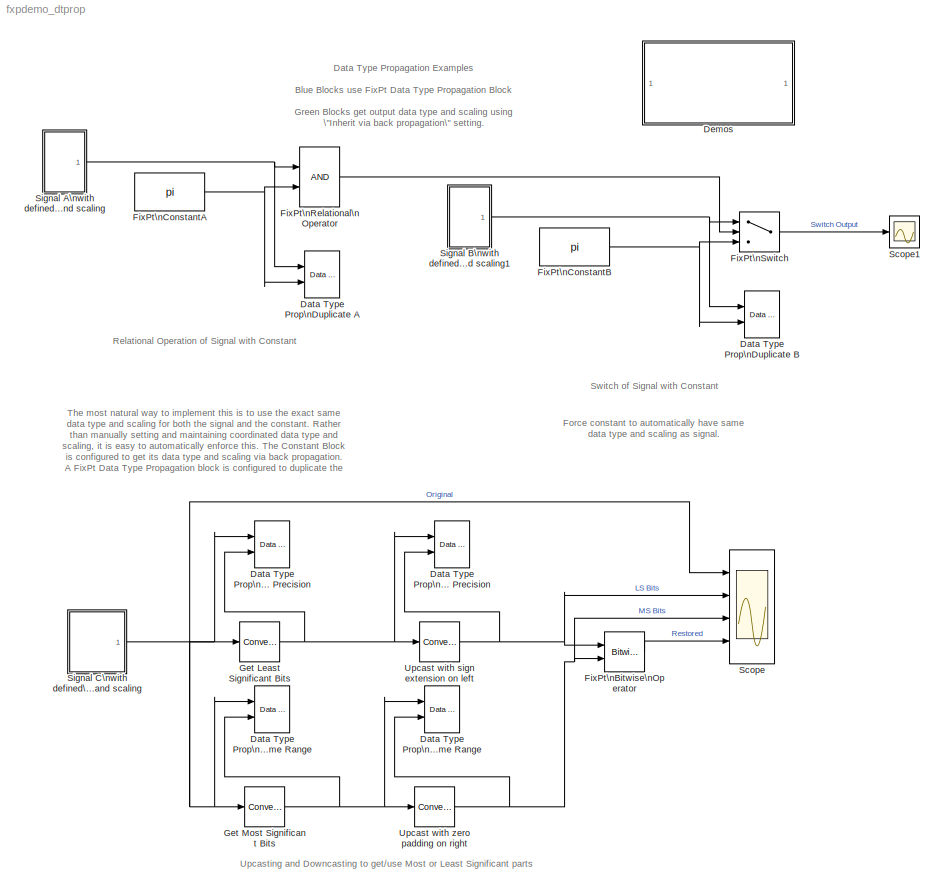
MODEL fxpdemo_dtprop
KIND model
CONFIG AbsTol = auto
CONFIG FixedStep = 0.01
CONFIG MaxStep = auto
CONFIG MinStep = auto
CONFIG RelTol = 1e-3
CONFIG Solver = FixedStepDiscrete
CONFIG SolverMode = Auto
CONFIG StartTime = 0.0
CONFIG StopTime = 10.0
BLOCK [Reference] Data Type Prop\nDuplicate A  REF=fixpt_dtprop/Data Type Prop\nDuplicate  (lib defined in mdl_1ce39afd46ea)
  DataTypeOverride = UseLocalSettings
  MinMaxOverflowLogging = UseLocalSettings
  Permissions = ReadWrite
  Ports = [2]
  RTWFcnNameOpts = Auto
  RTWFileNameOpts = Auto
  RTWSystemCode = Auto
  ShowPortLabels = on
  SimViewingDevice = off
  SourceBlock = fixpt_dtprop/Data Type Prop\nDuplicate
  SourceType = SubSystem
  TreatAsAtomicUnit = off
BLOCK [Reference] Data Type Prop\nDuplicate B  REF=fixpt_dtprop/Data Type Prop\nDuplicate  (lib defined in mdl_1ce39afd46ea)
  DataTypeOverride = UseLocalSettings
  MinMaxOverflowLogging = UseLocalSettings
  Permissions = ReadWrite
  Ports = [2]
  RTWFcnNameOpts = Auto
  RTWFileNameOpts = Auto
  RTWSystemCode = Auto
  ShowPortLabels = on
  SimViewingDevice = off
  SourceBlock = fixpt_dtprop/Data Type Prop\nDuplicate
  SourceType = SubSystem
  TreatAsAtomicUnit = off
BLOCK [Reference] Data Type Prop\nHalf the Bits\nSame Precision  REF=fixpt_dtprop/Data Type Prop\nHalf the Bits\nSame Precision  (lib defined in mdl_1ce39afd46ea)
  DataTypeOverride = UseLocalSettings
  MinMaxOverflowLogging = UseLocalSettings
  Permissions = ReadWrite
  Ports = [2]
  RTWFcnNameOpts = Auto
  RTWFileNameOpts = Auto
  RTWSystemCode = Auto
  ShowPortLabels = on
  SimViewingDevice = off
  SourceBlock = fixpt_dtprop/Data Type Prop\nHalf the Bits\nSame Precision
  SourceType = SubSystem
  TreatAsAtomicUnit = off
BLOCK [Reference] Data Type Prop\nHalf the Bits\nSame Range  REF=fixpt_dtprop/Data Type Prop\nHalf the Bits\nSame Range  (lib defined in mdl_1ce39afd46ea)
  DataTypeOverride = UseLocalSettings
  MinMaxOverflowLogging = UseLocalSettings
  Permissions = ReadWrite
  Ports = [2]
  RTWFcnNameOpts = Auto
  RTWFileNameOpts = Auto
  RTWSystemCode = Auto
  ShowPortLabels = on
  SimViewingDevice = off
  SourceBlock = fixpt_dtprop/Data Type Prop\nHalf the Bits\nSame Range
  SourceType = SubSystem
  TreatAsAtomicUnit = off
BLOCK [Reference] Data Type Prop\nTwice the Bits\nSame Precision  REF=fixpt_dtprop/Data Type Prop\nTwice the Bits\nSame Precision  (lib defined in mdl_1ce39afd46ea)
  DataTypeOverride = UseLocalSettings
  MinMaxOverflowLogging = UseLocalSettings
  Permissions = ReadWrite
  Ports = [2]
  RTWFcnNameOpts = Auto
  RTWFileNameOpts = Auto
  RTWSystemCode = Auto
  ShowPortLabels = on
  SimViewingDevice = off
  SourceBlock = fixpt_dtprop/Data Type Prop\nTwice the Bits\nSame Precision
  SourceType = SubSystem
  TreatAsAtomicUnit = off
BLOCK [Reference] Data Type Prop\nTwice the Bits\nSame Range  REF=fixpt_dtprop/Data Type Prop\nTwice the Bits\nSame Range  (lib defined in mdl_1ce39afd46ea)
  DataTypeOverride = UseLocalSettings
  MinMaxOverflowLogging = UseLocalSettings
  Permissions = ReadWrite
  Ports = [2]
  RTWFcnNameOpts = Auto
  RTWFileNameOpts = Auto
  RTWSystemCode = Auto
  ShowPortLabels = on
  SimViewingDevice = off
  SourceBlock = fixpt_dtprop/Data Type Prop\nTwice the Bits\nSame Range
  SourceType = SubSystem
  TreatAsAtomicUnit = off
BLOCK [SubSystem] Demos
  MaskDisplay = disp('Go to Library with\\nExample Uses of\\nData Type\\nPropagation Block')
  MaskIconFrame = on
  MaskIconOpaque = on
  MaskIconRotate = none
  MaskIconUnits = autoscale
  OpenFcn = open_system('fixpt_dtprop')
  Ports = []
  TreatAsAtomicUnit = off
BLOCK [Reference] FixPt\nBitwise\nOperator  REF=fixpt_lib_4/Bits/Bitwise\nOperator  (lib defined in mdl_ef9dacb0d1df)
  BitMask = 2^5+2^2+2^0
  BitMaskRealWorld = Stored Integer
  NumInputPorts = 2
  Ports = [2, 1]
  SourceBlock = fixpt_lib_4/Bits/Bitwise\nOperator
  SourceType = Fixed-Point Bitwise Operator
  UseBitMask = off
  logicop = OR
BLOCK [Constant] FixPt\nConstantA
  OutDataType = ufix(16)
  OutDataTypeMode = Inherit via back propagation
  OutScaling = 2^-12
  ShowAdditionalParam = on
  Value = pi
BLOCK [Constant] FixPt\nConstantB
  OutDataType = ufix(16)
  OutDataTypeMode = Inherit via back propagation
  OutScaling = 2^-12
  ShowAdditionalParam = on
  Value = pi
BLOCK [RelationalOperator] FixPt\nRelational\nOperator
  InputSameDT = off
  LogicOutDataTypeMode = Specify via dialog
  ShowAdditionalParam = on
BLOCK [Switch] FixPt\nSwitch
  InputSameDT = off
  SaturateOnIntegerOverflow = off
  ShowAdditionalParam = on
  Threshold = 0.5
BLOCK [Reference] Get Least Significant Bits  REF=fixpt_lib_4/Data Type/Conversion  (lib defined in mdl_ef9dacb0d1df)
  ConvertRealWorld = Real World Value
  DoSatur = off
  LockScale = off
  OutDataType = sfix(16)
  OutScaling = 2^-10
  OutputDataTypeScalingMode = Inherit via back propagation
  Ports = [1, 1]
  RndMeth = Floor
  SourceBlock = fixpt_lib_4/Data Type/Conversion
  SourceType = Fixed-Point to Fixed-Point Conversion
BLOCK [Reference] Get Most Significant Bits  REF=fixpt_lib_4/Data Type/Conversion  (lib defined in mdl_ef9dacb0d1df)
  ConvertRealWorld = Real World Value
  DoSatur = off
  LockScale = off
  OutDataType = sfix(16)
  OutScaling = 2^-10
  OutputDataTypeScalingMode = Inherit via back propagation
  Ports = [1, 1]
  RndMeth = Floor
  SourceBlock = fixpt_lib_4/Data Type/Conversion
  SourceType = Fixed-Point to Fixed-Point Conversion
BLOCK [Scope] Scope
  DataFormat = StructureWithTime
  NumInputPorts = 4
  Ports = [4]
  TimeRange = 10
  YMax = 1500~5~5~5
  YMin = 500~-5~-5~-5
BLOCK [Scope] Scope1
  DataFormat = StructureWithTime
  NumInputPorts = 1
  Ports = [1]
  SaveName = ScopeData1
  TimeRange = 10
  YMax = 405
  YMin = 370
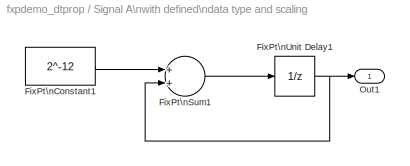
BLOCK [SubSystem] Signal A\nwith defined\ndata type and scaling
  Ports = [0, 1]
  TreatAsAtomicUnit = off
BLOCK [Constant] Signal A\nwith defined\ndata type and scaling/FixPt\nConstant1
  OutDataTypeMode = Specify via dialog
  OutScaling = 2^-12
  ShowAdditionalParam = on
  Value = 2^-12
BLOCK [Sum] Signal A\nwith defined\ndata type and scaling/FixPt\nSum1
  InputSameDT = off
  OutDataType = ufix(16)
  OutDataTypeMode = Inherit via internal rule
  OutScaling = [2^-12]
  Ports = [2, 1]
  SaturateOnIntegerOverflow = off
  ShowAdditionalParam = on
BLOCK [UnitDelay] Signal A\nwith defined\ndata type and scaling/FixPt\nUnit Delay1
  SampleTime = -1
  X0 = 3
BLOCK [Outport] Signal A\nwith defined\ndata type and scaling/Out1
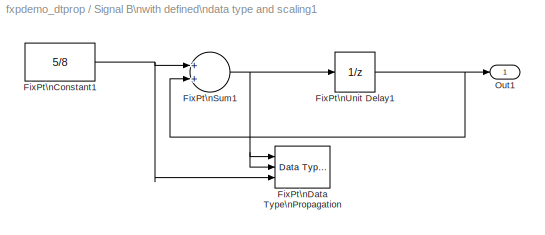
BLOCK [SubSystem] Signal B\nwith defined\ndata type and scaling1
  Ports = [0, 1]
  TreatAsAtomicUnit = off
BLOCK [Constant] Signal B\nwith defined\ndata type and scaling1/FixPt\nConstant1
  OutDataType = ufix(8)
  OutDataTypeMode = Inherit via back propagation
  OutScaling = [5/8 371]
  ShowAdditionalParam = on
  Value = 5/8
BLOCK [Reference] Signal B\nwith defined\ndata type and scaling1/FixPt\nData Type\nPropagation  REF=fixpt_lib_4/Data Type/Data Type\nPropagation  (lib defined in mdl_ef9dacb0d1df)
  BiasAdd = 0
  BiasBase = Bias1
  BiasMult = 0
  IfRefDouble = double
  IfRefSingle = single
  IsSigned = IsSigned1
  NumBitsAdd = 0
  NumBitsAllowFinal = 1:128
  NumBitsBase = NumBits1
  NumBitsMult = 1
  Ports = [3]
  PropDataType = sfix(16)
  PropDataTypeMode = Inherit via propagation rule
  PropScaling = 2^-10
  PropScalingMode = Inherit via propagation rule
  SlopeAdd = 0
  SlopeBase = Slope1
  SlopeMult = 1
  SourceBlock = fixpt_lib_4/Data Type/Data Type\nPropagation
  SourceType = Fixed-Point Data Type Propagation
  ValuesUsedBestPrec = [5 -7]
BLOCK [Sum] Signal B\nwith defined\ndata type and scaling1/FixPt\nSum1
  InputSameDT = off
  OutDataType = ufix(8)
  OutDataTypeMode = Specify via dialog
  OutScaling = [5/8 371]
  Ports = [2, 1]
  SaturateOnIntegerOverflow = off
  ShowAdditionalParam = on
BLOCK [UnitDelay] Signal B\nwith defined\ndata type and scaling1/FixPt\nUnit Delay1
  SampleTime = -1
BLOCK [Outport] Signal B\nwith defined\ndata type and scaling1/Out1
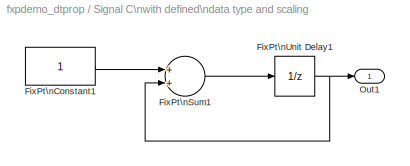
BLOCK [SubSystem] Signal C\nwith defined\ndata type and scaling
  Ports = [0, 1]
  TreatAsAtomicUnit = off
BLOCK [Constant] Signal C\nwith defined\ndata type and scaling/FixPt\nConstant1
  OutDataType = ufix(16)
  OutDataTypeMode = Specify via dialog
  ShowAdditionalParam = on
BLOCK [Sum] Signal C\nwith defined\ndata type and scaling/FixPt\nSum1
  InputSameDT = off
  OutDataType = ufix(16)
  OutDataTypeMode = Inherit via internal rule
  OutScaling = [2^-12]
  Ports = [2, 1]
  SaturateOnIntegerOverflow = off
  ShowAdditionalParam = on
BLOCK [UnitDelay] Signal C\nwith defined\ndata type and scaling/FixPt\nUnit Delay1
  SampleTime = -1
  X0 = 500
BLOCK [Outport] Signal C\nwith defined\ndata type and scaling/Out1
BLOCK [Reference] Upcast with sign extension on left  REF=fixpt_lib_4/Data Type/Conversion  (lib defined in mdl_ef9dacb0d1df)
  ConvertRealWorld = Real World Value
  DoSatur = off
  LockScale = off
  OutDataType = sfix(16)
  OutScaling = 2^-10
  OutputDataTypeScalingMode = Inherit via back propagation
  Ports = [1, 1]
  RndMeth = Floor
  SourceBlock = fixpt_lib_4/Data Type/Conversion
  SourceType = Fixed-Point to Fixed-Point Conversion
BLOCK [Reference] Upcast with zero padding on right  REF=fixpt_lib_4/Data Type/Conversion  (lib defined in mdl_ef9dacb0d1df)
  ConvertRealWorld = Real World Value
  DoSatur = off
  LockScale = off
  OutDataType = sfix(16)
  OutScaling = 2^-10
  OutputDataTypeScalingMode = Inherit via back propagation
  Ports = [1, 1]
  RndMeth = Floor
  SourceBlock = fixpt_lib_4/Data Type/Conversion
  SourceType = Fixed-Point to Fixed-Point Conversion
ANNOTATION (root): Data Type Propagation Examples\n\nBlue Blocks use FixPt Data Type Propagation Block\n\nGreen Blocks get output data type and scaling using\n\"Inherit via back propagation\" setting.
ANNOTATION (root): Force constant to automatically have same \ndata type and scaling as signal.
ANNOTATION (root): Relational Operation of Signal with Constant
ANNOTATION (root): Switch of Signal with Constant
ANNOTATION (root): The most natural way to implement this is to use the exact same\ndata type and scaling for both the signal and the constant. Rather\nthan manually setting and maintaining coordinated data type and\nscaling, it is easy to automatically enforce this. The Constant Block\nis configured to get its data type and scaling via back propagation. \nA FixPt Data Type Propagation block is configured to duplica...<+54ch>
ANNOTATION (root): Upcasting and Downcasting to get/use Most or Least Significant parts
LINE FixPt\nBitwise\nOperator:1 -> Scope:4
NET FixPt\nConstantA:1 -> Data Type Prop\nDuplicate A:2, FixPt\nRelational\nOperator:2
NET FixPt\nConstantB:1 -> Data Type Prop\nDuplicate B:2, FixPt\nSwitch:3
LINE FixPt\nRelational\nOperator:1 -> FixPt\nSwitch:2
LINE FixPt\nSwitch:1 -> Scope1:1
NET Get Least Significant Bits:1 -> Data Type Prop\nHalf the Bits\nSame Precision:2, Data Type Prop\nTwice the Bits\nSame Precision:1, Upcast with sign extension on left:1
NET Get Most Significant Bits:1 -> Data Type Prop\nHalf the Bits\nSame Range:2, Data Type Prop\nTwice the Bits\nSame Range:1, Upcast with zero padding on right:1
LINE Signal A\nwith defined\ndata type and scaling/FixPt\nConstant1:1 -> Signal A\nwith defined\ndata type and scaling/FixPt\nSum1:1
LINE Signal A\nwith defined\ndata type and scaling/FixPt\nSum1:1 -> Signal A\nwith defined\ndata type and scaling/FixPt\nUnit Delay1:1
NET Signal A\nwith defined\ndata type and scaling/FixPt\nUnit Delay1:1 -> Signal A\nwith defined\ndata type and scaling/FixPt\nSum1:2, Signal A\nwith defined\ndata type and scaling/Out1:1
NET Signal A\nwith defined\ndata type and scaling:1 -> Data Type Prop\nDuplicate A:1, FixPt\nRelational\nOperator:1
NET Signal B\nwith defined\ndata type and scaling1/FixPt\nConstant1:1 -> Signal B\nwith defined\ndata type and scaling1/FixPt\nData Type\nPropagation:3, Signal B\nwith defined\ndata type and scaling1/FixPt\nSum1:1
NET Signal B\nwith defined\ndata type and scaling1/FixPt\nSum1:1 -> Signal B\nwith defined\ndata type and scaling1/FixPt\nData Type\nPropagation:1, Signal B\nwith defined\ndata type and scaling1/FixPt\nData Type\nPropagation:2, Signal B\nwith defined\ndata type and scaling1/FixPt\nUnit Delay1:1
NET Signal B\nwith defined\ndata type and scaling1/FixPt\nUnit Delay1:1 -> Signal B\nwith defined\ndata type and scaling1/FixPt\nSum1:2, Signal B\nwith defined\ndata type and scaling1/Out1:1
NET Signal B\nwith defined\ndata type and scaling1:1 -> Data Type Prop\nDuplicate B:1, FixPt\nSwitch:1
LINE Signal C\nwith defined\ndata type and scaling/FixPt\nConstant1:1 -> Signal C\nwith defined\ndata type and scaling/FixPt\nSum1:1
LINE Signal C\nwith defined\ndata type and scaling/FixPt\nSum1:1 -> Signal C\nwith defined\ndata type and scaling/FixPt\nUnit Delay1:1
NET Signal C\nwith defined\ndata type and scaling/FixPt\nUnit Delay1:1 -> Signal C\nwith defined\ndata type and scaling/FixPt\nSum1:2, Signal C\nwith defined\ndata type and scaling/Out1:1
NET Signal C\nwith defined\ndata type and scaling:1 -> Data Type Prop\nHalf the Bits\nSame Precision:1, Data Type Prop\nHalf the Bits\nSame Range:1, Get Least Significant Bits:1, Get Most Significant Bits:1, Scope:1
NET Upcast with sign extension on left:1 -> Data Type Prop\nTwice the Bits\nSame Precision:2, FixPt\nBitwise\nOperator:1, Scope:2
NET Upcast with zero padding on right:1 -> Data Type Prop\nTwice the Bits\nSame Range:2, FixPt\nBitwise\nOperator:2, Scope:3
note: NET lines group one-source signal fan-out (src -> all destinations, sorted); 1:1 wires keep LINE
